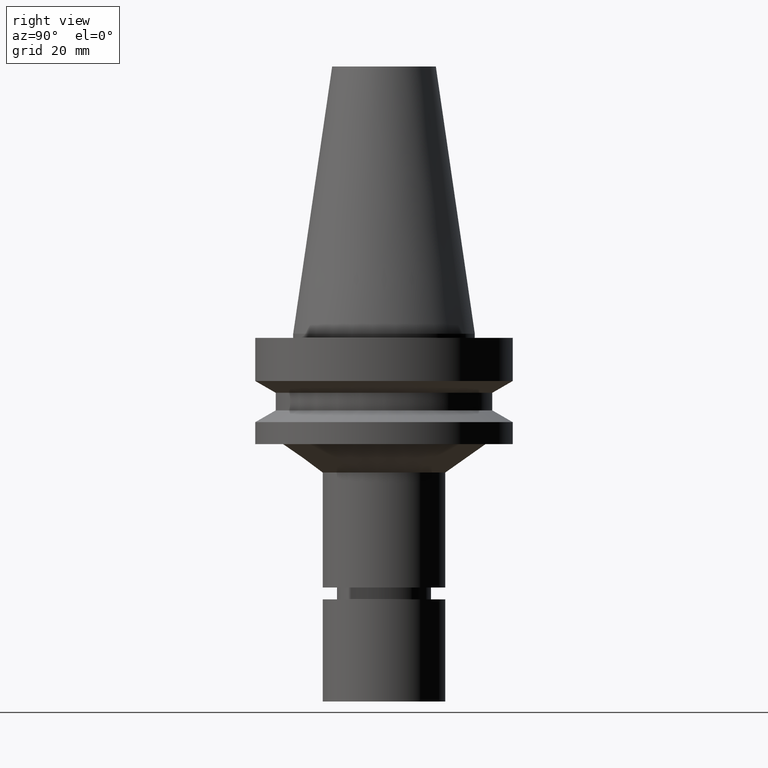
[diagram: clean part render]
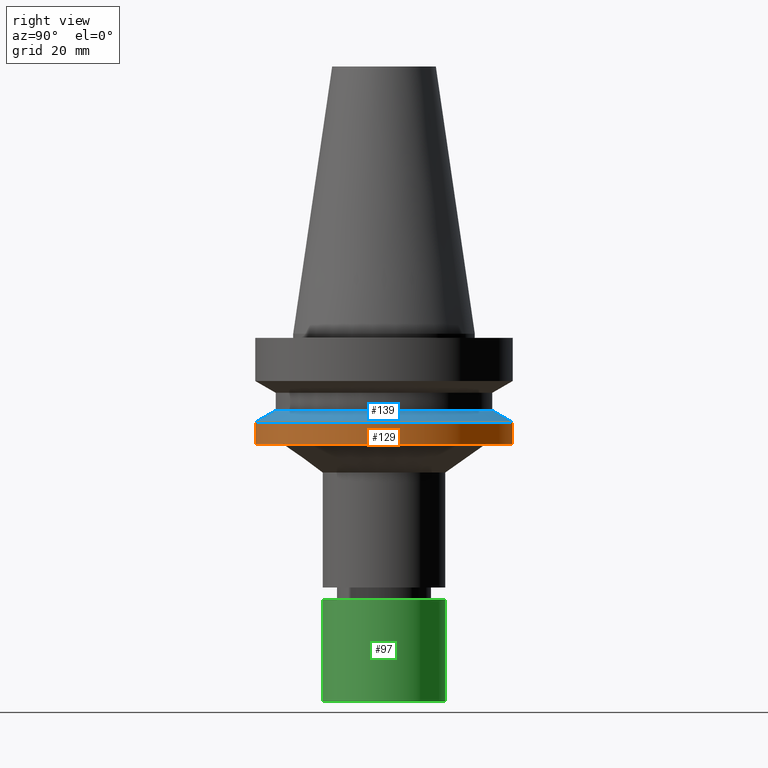
[diagram: same view with three faces highlighted in distinct colors, each labeled with its STEP entity id]
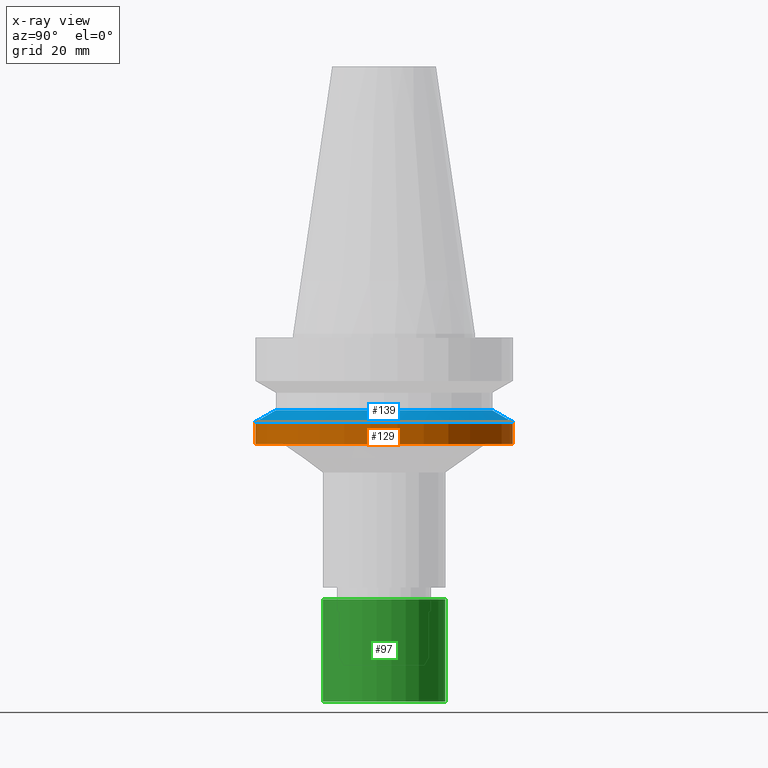
[diagram: x-ray of the same camera — body ghosted, the three highlighted faces saturated]
A machine part, right view with three faces highlighted in distinct colors.
The next image is the same camera in x-ray (body ghosted, the three faces saturated) — at least one of them is partly hidden behind the body in this view.
Their STEP definitions:

[orange] entity #129 — the highlighted cylindrical surface (bore or boss wall) has radius 31.5 mm, axis along (0, -0, -1).
#75=EDGE_CURVE('Unnamed[1]',#201,#201,#202,.T.);
#129=ADVANCED_FACE('Unnamed[1]',(#284,#285),#286,.T.);
#133=EDGE_CURVE('Unnamed[1]',#291,#291,#292,.T.);
#201=VERTEX_POINT('',#377);
#202=CIRCLE('',#378,31.5000000000006);
#284=FACE_BOUND('',#480,.T.);
#285=FACE_BOUND('',#481,.T.);
#286=CYLINDRICAL_SURFACE('',#482,31.5000000000005);
#291=VERTEX_POINT('',#489);
#292=CIRCLE('',#490,31.5000000000003);
#377=CARTESIAN_POINT('',(1.32473071268174E-015,31.5000000000007,-21.6344943473346));
#378=AXIS2_PLACEMENT_3D('',#580,#581,#582);
#480=EDGE_LOOP('',(#671));
#481=EDGE_LOOP('',(#672));
#482=AXIS2_PLACEMENT_3D('',#673,#674,#675);
#489=CARTESIAN_POINT('',(1.65327317884891E-015,31.5000000000004,-26.9999999999998));
#490=AXIS2_PLACEMENT_3D('',#679,#680,#681);
#580=CARTESIAN_POINT('',(1.32473071268174E-015,7.30081523566132E-014,-21.6344943473346));
#581=DIRECTION('',(6.12323399573677E-017,-4.7256395665028E-017,-1.0));
#582=DIRECTION('',(-1.93353304624816E-033,1.0,-4.7256395665028E-017));
#671=ORIENTED_EDGE('',*,*,#133,.F.);
#672=ORIENTED_EDGE('',*,*,#75,.T.);
#673=CARTESIAN_POINT('',(1.48900194576533E-015,7.28813751275806E-014,-24.3172471736672));
#674=DIRECTION('',(6.12323399573677E-017,-4.72563956650279E-017,-1.0));
#675=DIRECTION('',(-1.93353304624816E-033,1.0,-4.7256395665028E-017));
#679=CARTESIAN_POINT('',(1.65327317884891E-015,7.2754597898548E-014,-26.9999999999998));
#680=DIRECTION('',(6.12323399573677E-017,-4.7256395665028E-017,-1.0));
#681=DIRECTION('',(-1.93353304624816E-033,1.0,-4.7256395665028E-017));

[blue] entity #139 — the highlighted conical surface has half-angle 60 deg.
#75=EDGE_CURVE('Unnamed[1]',#201,#201,#202,.T.);
#139=ADVANCED_FACE('Unnamed[1]',(#299,#300),#301,.T.);
#172=EDGE_CURVE('Unnamed[1]',#349,#349,#350,.T.);
#201=VERTEX_POINT('',#377);
#202=CIRCLE('',#378,31.5000000000006);
#299=FACE_BOUND('',#499,.T.);
#300=FACE_BOUND('',#500,.T.);
#301=CONICAL_SURFACE('',#501,29.0000000000003,1.04719755119651);
#349=VERTEX_POINT('',#561);
#350=CIRCLE('',#562,26.5);
#377=CARTESIAN_POINT('',(1.32473071268174E-015,31.5000000000007,-21.6344943473346));
#378=AXIS2_PLACEMENT_3D('',#580,#581,#582);
#499=EDGE_LOOP('',(#688));
#500=EDGE_LOOP('',(#689));
#501=AXIS2_PLACEMENT_3D('',#690,#691,#692);
#561=CARTESIAN_POINT('',(1.1479681728942E-015,26.5,-18.7477430013855));
#562=AXIS2_PLACEMENT_3D('',#743,#744,#745);
#580=CARTESIAN_POINT('',(1.32473071268174E-015,7.30081523566132E-014,-21.6344943473346));
#581=DIRECTION('',(6.12323399573677E-017,-4.7256395665028E-017,-1.0));
#582=DIRECTION('',(-1.93353304624816E-033,1.0,-4.7256395665028E-017));
#688=ORIENTED_EDGE('',*,*,#75,.F.);
#689=ORIENTED_EDGE('',*,*,#172,.T.);
#690=CARTESIAN_POINT('',(1.23634944278797E-015,7.30763610885086E-014,-20.1911186743601));
#691=DIRECTION('',(6.12323399573677E-017,-4.7256395665028E-017,-1.0));
#692=DIRECTION('',(-1.93353304624815E-033,1.0,-4.7256395665028E-017));
#743=CARTESIAN_POINT('',(1.1479681728942E-015,7.3144569820404E-014,-18.7477430013855));
#744=DIRECTION('',(6.12323399573677E-017,-4.7256395665028E-017,-1.0));
#745=DIRECTION('',(-1.93353304624816E-033,1.0,-4.7256395665028E-017));

[green] entity #97 — the highlighted cylindrical surface (bore or boss wall) has radius 15 mm, axis along (0, -0, -1).
#88=EDGE_CURVE('Unnamed[1]',#221,#221,#222,.T.);
#97=ADVANCED_FACE('Unnamed[1]',(#235,#236),#237,.T.);
#99=EDGE_CURVE('Unnamed[1]',#239,#239,#240,.T.);
#221=VERTEX_POINT('',#403);
#222=CIRCLE('',#404,14.9999999999999);
#235=FACE_BOUND('',#420,.T.);
#236=FACE_BOUND('',#421,.T.);
#237=CYLINDRICAL_SURFACE('',#422,15.0);
#239=VERTEX_POINT('',#425);
#240=CIRCLE('',#426,15.0);
#403=CARTESIAN_POINT('',(5.51091059616309E-015,15.0,-90.0));
#404=AXIS2_PLACEMENT_3D('',#601,#602,#603);
#420=EDGE_LOOP('',(#617));
#421=EDGE_LOOP('',(#618));
#422=AXIS2_PLACEMENT_3D('',#619,#620,#621);
#425=CARTESIAN_POINT('',(3.9801020972289E-015,15.0000000000001,-65.0));
#426=AXIS2_PLACEMENT_3D('',#622,#623,#624);
#601=CARTESIAN_POINT('',(5.51091059616309E-015,6.97774449716512E-014,-90.0));
#602=DIRECTION('',(6.12323399573677E-017,-4.7256395665028E-017,-1.0));
#603=DIRECTION('',(-1.93353304624816E-033,1.0,-4.72563956650279E-017));
#617=ORIENTED_EDGE('',*,*,#88,.F.);
#618=ORIENTED_EDGE('',*,*,#99,.T.);
#619=CARTESIAN_POINT('',(4.74550634669599E-015,7.0368149917464E-014,-77.5));
#620=DIRECTION('',(6.12323399573677E-017,-4.72563956650279E-017,-1.0));
#621=DIRECTION('',(-1.93353304624816E-033,1.0,-4.72563956650279E-017));
#622=CARTESIAN_POINT('',(3.9801020972289E-015,7.09588548632769E-014,-65.0));
#623=DIRECTION('',(6.12323399573677E-017,-4.72563956650279E-017,-1.0));
#624=DIRECTION('',(-1.93353304624816E-033,1.0,-4.72563956650279E-017));